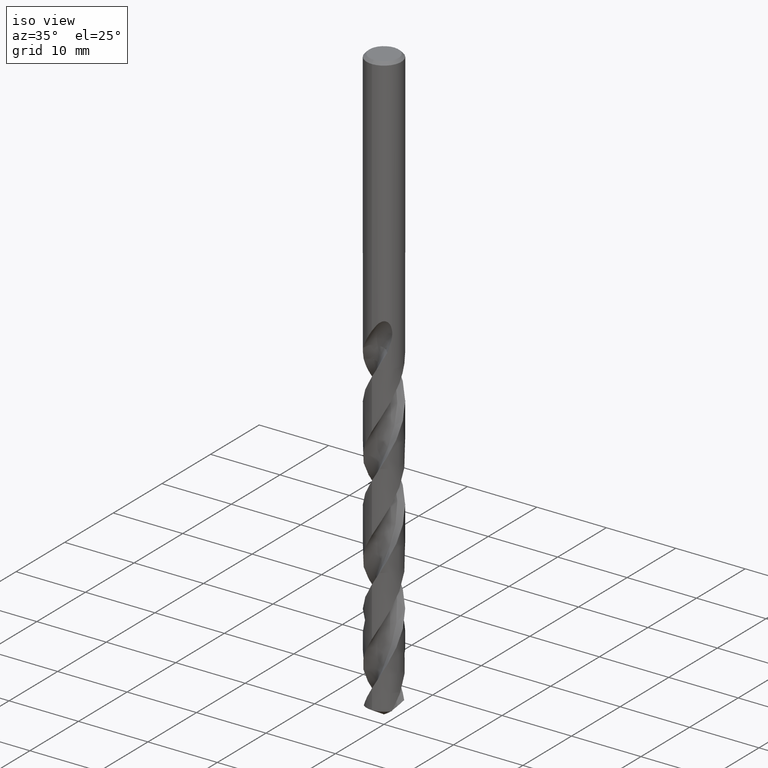
[diagram: clean part render]
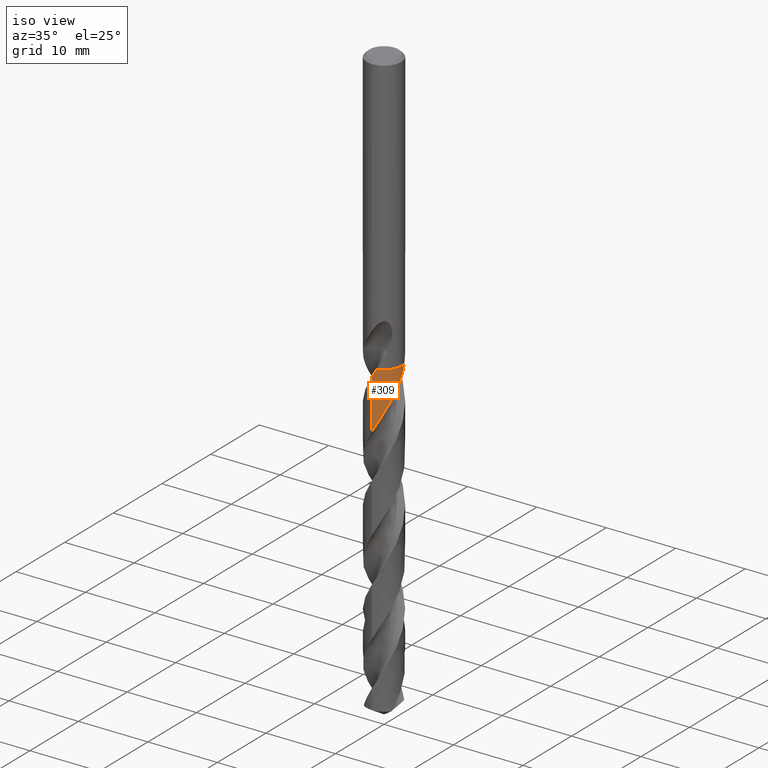
[diagram: same view with one face highlighted and labeled with its STEP entity id]
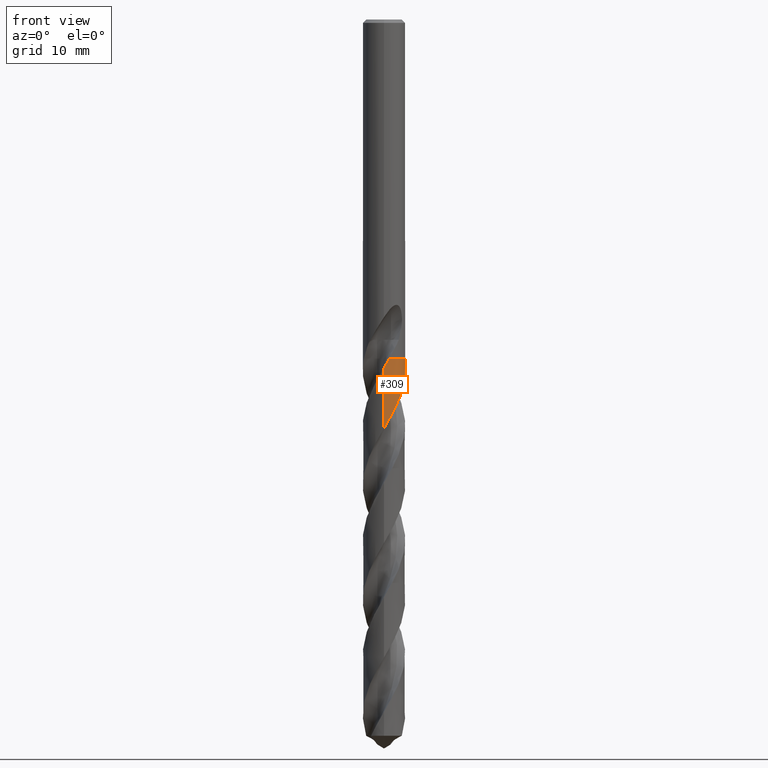
[diagram: same view with one face highlighted and labeled with its STEP entity id]
A machine part, iso view. The second image highlights one B-rep face of the part: STEP entity #309.
A second angle (front view) of the same face is appended — the face is thin or edge-on in the first view.
In plain terms, the highlighted conical surface has half-angle 0 deg.
Its self-contained STEP definition (entity closure, byte-faithful):
#309=ADVANCED_FACE('',(#850),#851,.T.);
#409=VERTEX_POINT('',#961);
#429=VERTEX_POINT('',#983);
#495=EDGE_CURVE('',#429,#645,#1057,.T.);
#511=EDGE_CURVE('',#521,#645,#1073,.T.);
#521=VERTEX_POINT('',#1084);
#531=VERTEX_POINT('',#1095);
#645=VERTEX_POINT('',#1218);
#685=EDGE_CURVE('',#531,#809,#1260,.T.);
#701=EDGE_CURVE('',#521,#531,#1280,.T.);
#707=EDGE_CURVE('',#409,#429,#1287,.T.);
#733=EDGE_CURVE('',#809,#409,#1315,.T.);
#809=VERTEX_POINT('',#1396);
#850=FACE_OUTER_BOUND('',#2003,.T.);
#851=CONICAL_SURFACE('',#2004,2.49995,2.2472996667905E-006);
#961=CARTESIAN_POINT('',(0.632796040746266,-2.41848489365054,-40.0));
#983=CARTESIAN_POINT('',(0.629984791666871,-2.41921872271421,-40.005));
#1057=B_SPLINE_CURVE_WITH_KNOTS('',3,(#5531,#5532,#5533,#5534,#5535,#5536,#5537,#5538,#5539,#5540,#5541,#5542,#5543,#5544,#5545,#5546,#5547,#5548,#5549,#5550,#5551,#5552,#5553,#5554,#5555,#5556,#5557,#5558,#5559,#5560,#5561,#5562,#5563,#5564,#5565,#5566,#5567,#5568,#5569,#5570,#5571,#5572,#5573,#5574,#5575,#5576,#5577,#5578,#5579,#5580,#5581,#5582,#5583,#5584,#5585,#5586,#5587,#5588,#5589,#5590,#5591,#5592,#5593,#5594,#5595,#5596,#5597,#5598,#5599,#5600,#5601,#5602,#5603,#5604,#5605,#5606,#5607,#5608,#5609,#5610,#5611,#5612,#5613,#5614,#5615,#5616,#5617,#5618,#5619,#5620,#5621,#5622,#5623,#5624,#5625,#5626,#5627,#5628,#5629,#5630,#5631,#5632,#5633,#5634,#5635,#5636,#5637,#5638,#5639,#5640,#5641,#5642,#5643,#5644,#5645,#5646,#5647,#5648,#5649,#5650,#5651,#5652,#5653,#5654,#5655,#5656,#5657,#5658,#5659,#5660,#5661,#5662,#5663,#5664,#5665,#5666,#5667,#5668,#5669,#5670,#5671,#5672,#5673,#5674,#5675,#5676,#5677,#5678,#5679,#5680,#5681,#5682),.UNSPECIFIED.,.F.,.F.,(4,2,2,2,2,2,2,2,2,2,2,2,2,2,2,2,2,2,2,2,2,2,2,2,2,2,2,2,2,2,2,2,2,2,2,2,2,2,2,2,2,2,2,2,2,2,2,2,2,2,2,2,2,2,2,2,2,2,2,2,2,2,2,2,2,2,2,2,2,2,2,2,2,2,2,4),(0.0,0.486468637205659,1.70143641228443,2.65078651556371,2.69801352807656,4.16182916539845,4.64297843482625,5.46628319013325,5.94827491671643,6.39877088951246,7.2452349083656,8.20441671320281,9.24810325309858,9.84779101742596,10.7331854300438,11.1672260344376,11.6253635205014,12.4724261974801,12.9064373972803,13.365326095412,14.2079548086289,15.167164260544,16.1997147164964,16.8178226143658,17.7068396053384,18.140601446097,18.594473016517,19.4452445024272,19.878983841379,20.3339119557433,21.1821044103471,22.1399289317482,23.1860164497523,23.7797694981045,24.6652458710148,25.6228613857516,26.6730879037276,27.2602448664424,28.1449336295283,28.578501826849,29.0356507875547,29.8793876935311,30.3129781186961,30.7736254975366,31.6147356714986,32.048322163168,32.511746710175,33.3521728259255,34.310511339114,35.3384254203687,35.96204701574,36.8504313694439,37.8066224498992,38.8631528107547,39.4383850291312,40.3219578972178,40.7552014930623,41.2125694869403,42.0580960960982,42.4913104596901,42.9496833130464,43.793179147003,44.2263766387619,44.6861272882223,45.5281025525777,46.9858631663966,47.5358344393069,48.4852455571852,49.2093118088113,50.2988937702121,50.8460679603494,51.120258945224,51.2572517241446,51.3256364851117,51.3597868174541,51.3939164880868),.UNSPECIFIED.);
#1073=LINE('',#5789,#5790);
#1084=CARTESIAN_POINT('',(7.49775779177427E-013,-2.49991849177696,-48.2284428891601));
#1095=CARTESIAN_POINT('',(2.35724694031575,0.832398306731279,-40.005));
#1218=CARTESIAN_POINT('',(-2.25444126634023E-013,-2.49990247498614,-41.1013155783713));
#1260=B_SPLINE_CURVE_WITH_KNOTS('',3,(#9402,#9403,#9404,#9405),.UNSPECIFIED.,.F.,.F.,(4,4),(0.0,0.00783485658020793),.UNSPECIFIED.);
#1280=B_SPLINE_CURVE_WITH_KNOTS('',3,(#9435,#9436,#9437,#9438,#9439,#9440,#9441,#9442,#9443,#9444,#9445,#9446,#9447,#9448,#9449,#9450,#9451,#9452,#9453,#9454,#9455,#9456,#9457,#9458,#9459,#9460,#9461,#9462,#9463,#9464,#9465,#9466,#9467,#9468,#9469,#9470,#9471,#9472,#9473,#9474,#9475,#9476,#9477,#9478,#9479,#9480,#9481,#9482,#9483,#9484,#9485,#9486,#9487,#9488,#9489,#9490,#9491,#9492,#9493,#9494,#9495,#9496,#9497,#9498,#9499,#9500,#9501,#9502,#9503,#9504,#9505,#9506,#9507,#9508,#9509,#9510,#9511,#9512,#9513,#9514,#9515,#9516,#9517,#9518,#9519,#9520,#9521,#9522,#9523,#9524,#9525,#9526,#9527,#9528,#9529,#9530,#9531,#9532,#9533,#9534,#9535,#9536,#9537,#9538,#9539,#9540,#9541,#9542,#9543,#9544,#9545,#9546,#9547,#9548,#9549,#9550,#9551,#9552,#9553,#9554,#9555,#9556,#9557,#9558,#9559,#9560,#9561,#9562,#9563,#9564,#9565,#9566,#9567,#9568,#9569,#9570,#9571,#9572,#9573,#9574,#9575,#9576),.UNSPECIFIED.,.F.,.F.,(4,2,2,2,2,2,2,2,2,2,2,2,2,2,2,2,2,2,2,2,2,2,2,2,2,2,2,2,2,2,2,2,2,2,2,2,2,2,2,2,2,2,2,2,2,2,2,2,2,2,2,2,2,2,2,2,2,2,2,2,2,2,2,2,2,2,2,2,2,2,4),(0.0,0.886278392990134,1.32204168608435,2.18261664326031,3.04564370395588,3.80067059461583,4.53740035056587,5.01882581777993,5.37595032622277,6.43013206591807,7.22866469830102,8.65957156160223,8.85817479758621,9.89358465054521,10.7988532869425,11.5386437890194,11.9762295956819,12.7367552003956,13.6036792088966,14.4616483482586,15.3279048185633,16.1880553603282,17.0538426357121,17.488963389255,17.5551518693274,19.187686928308,19.3502184185733,20.372372509029,20.8054814901363,21.1433662643557,22.192403467487,23.0530888341666,23.9052028819446,24.7678786674932,25.5839327053124,26.0034158488695,26.3495649935091,27.4014588778916,28.1913417822223,29.6473237969438,29.7168776992087,30.754414896589,31.2292816728727,31.5816018632148,32.6319060144131,33.4274958473806,34.8679289978624,35.0597702640648,36.1002934238635,36.9963758875166,37.8127290278321,38.2376268294924,38.5868849836734,39.6519802673248,40.5199963048351,41.3729273516226,42.2431728642578,43.0074654064831,43.4455895869971,44.1857307690151,45.053814424272,45.8608030823382,46.5758274387533,46.8907979830468,47.4750985454959,48.5074653239573,49.2845076563142,50.4535732717912,51.0374889365494,51.332678916991,51.6278332694661),.UNSPECIFIED.);
#1287=B_SPLINE_CURVE_WITH_KNOTS('',3,(#10366,#10367,#10368,#10369),.UNSPECIFIED.,.F.,.F.,(4,4),(0.0,0.00714217259551268),.UNSPECIFIED.);
#1315=CIRCLE('',#10572,2.4999);
#1396=CARTESIAN_POINT('',(2.35627205901055,0.835153874400518,-40.0));
#2003=EDGE_LOOP('',(#12821,#12822,#12823,#12824,#12825,#12826));
#2004=AXIS2_PLACEMENT_3D('',#12827,#12828,#12829);
#5531=CARTESIAN_POINT('',(0.63023927417457,-2.41915243802108,-40.0045474541089));
#5532=CARTESIAN_POINT('',(0.551399159961684,-2.43969224495614,-40.14475084188));
#5533=CARTESIAN_POINT('',(0.471584726215799,-2.45637022987312,-40.2847910390962));
#5534=CARTESIAN_POINT('',(0.190016485841626,-2.50096843403933,-40.7751877348511));
#5535=CARTESIAN_POINT('',(-0.0140317145013403,-2.50811246414122,-41.1247744082103));
#5536=CARTESIAN_POINT('',(-0.374744383561304,-2.4767538626434,-41.7488575215678));
#5537=CARTESIAN_POINT('',(-0.531400300454792,-2.44794390539751,-42.0217327359614));
#5538=CARTESIAN_POINT('',(-0.691971968673954,-2.40224131618718,-42.3089445319066));
#5539=CARTESIAN_POINT('',(-0.699569909542848,-2.40003971571571,-42.3225538072412));
#5540=CARTESIAN_POINT('',(-0.942356929850779,-2.32843815028442,-42.7581107461923));
#5541=CARTESIAN_POINT('',(-1.16611997522422,-2.22482201011015,-43.1787331290915));
#5542=CARTESIAN_POINT('',(-1.43856095360426,-2.04611368679078,-43.739511093452));
#5543=CARTESIAN_POINT('',(-1.50375152755506,-1.99869016477058,-43.8780944923187));
#5544=CARTESIAN_POINT('',(-1.67392845575327,-1.86185557076079,-44.2543260410339));
#5545=CARTESIAN_POINT('',(-1.77403720257583,-1.76673561200314,-44.4915809876875));
#5546=CARTESIAN_POINT('',(-1.91953298776288,-1.60357848848554,-44.8680212252548));
#5547=CARTESIAN_POINT('',(-1.97032148143572,-1.5407504398965,-45.0069024608171));
#5548=CARTESIAN_POINT('',(-2.06254482885601,-1.4146257269884,-45.2757809540807));
#5549=CARTESIAN_POINT('',(-2.10429706700117,-1.35173375434415,-45.4055592500577));
#5550=CARTESIAN_POINT('',(-2.21610031849606,-1.16556904881058,-45.7796630826873));
#5551=CARTESIAN_POINT('',(-2.27862168283373,-1.0380533219699,-46.0235915854911));
#5552=CARTESIAN_POINT('',(-2.3882249983064,-0.756154306176223,-46.5443837713302));
#5553=CARTESIAN_POINT('',(-2.43186032618212,-0.601184418193876,-46.8199811434991));
#5554=CARTESIAN_POINT('',(-2.49130335919881,-0.271156714690888,-47.3977765336848));
#5555=CARTESIAN_POINT('',(-2.50417537122244,-0.0963279952251409,-47.6982197391236));
#5556=CARTESIAN_POINT('',(-2.49553174160593,0.178917266253958,-48.1721965873275));
#5557=CARTESIAN_POINT('',(-2.48632602993001,0.279040151212175,-48.3448428689166));
#5558=CARTESIAN_POINT('',(-2.44868865264733,0.524890387792521,-48.7732847998357));
#5559=CARTESIAN_POINT('',(-2.41324705442217,0.669212239860789,-49.0284699400836));
#5560=CARTESIAN_POINT('',(-2.34166096491422,0.878360884920476,-49.4091020070278));
#5561=CARTESIAN_POINT('',(-2.31511672937744,0.946115214320303,-49.5342245070372));
#5562=CARTESIAN_POINT('',(-2.25454574701492,1.08283414355419,-49.7915653744762));
#5563=CARTESIAN_POINT('',(-2.22023799763403,1.1515391921493,-49.9235862701155));
#5564=CARTESIAN_POINT('',(-2.11368486334522,1.34241556341654,-50.3001896630618));
#5565=CARTESIAN_POINT('',(-2.03409508490684,1.46021278242989,-50.5443660733219));
#5566=CARTESIAN_POINT('',(-1.89923081579418,1.62721654961593,-50.913975206333));
#5567=CARTESIAN_POINT('',(-1.85108470851523,1.68178546562946,-51.0391040146947));
#5568=CARTESIAN_POINT('',(-1.74725634725903,1.78959192830133,-51.2966833503941));
#5569=CARTESIAN_POINT('',(-1.69139055465751,1.84248064689944,-51.4289346947159));
#5570=CARTESIAN_POINT('',(-1.52633334597709,1.98490838909519,-51.8045203367325));
#5571=CARTESIAN_POINT('',(-1.41182759521533,2.06792595915809,-52.0474538732452));
#5572=CARTESIAN_POINT('',(-1.15324841885172,2.22384755647403,-52.5673762881366));
#5573=CARTESIAN_POINT('',(-1.00794722539404,2.29336051448927,-52.8430931799613));
#5574=CARTESIAN_POINT('',(-0.694534008567055,2.40773496991129,-53.4179332209462));
#5575=CARTESIAN_POINT('',(-0.526270104493439,2.45003207139287,-53.7153265046415));
#5576=CARTESIAN_POINT('',(-0.252353394923137,2.48932009422073,-54.1916165525459));
#5577=CARTESIAN_POINT('',(-0.14900313310003,2.49763583314589,-54.3696286408948));
#5578=CARTESIAN_POINT('',(0.103470604501137,2.50222843629095,-54.8046218844061));
#5579=CARTESIAN_POINT('',(0.252379803112171,2.49162175910156,-55.0609574583934));
#5580=CARTESIAN_POINT('',(0.471251258865402,2.45619256746932,-55.4427203984455));
#5581=CARTESIAN_POINT('',(0.542495455274487,2.44144707642524,-55.5678167490976));
#5582=CARTESIAN_POINT('',(0.686791266888688,2.40495065894258,-55.823958924539));
#5583=CARTESIAN_POINT('',(0.759650841521,2.3829380048545,-55.9548121675991));
#5584=CARTESIAN_POINT('',(0.965813700553425,2.31024007728766,-56.3314201274665));
#5585=CARTESIAN_POINT('',(1.09598876324218,2.25140748419148,-56.5767675128888));
#5586=CARTESIAN_POINT('',(1.28391668799822,2.14628405551235,-56.9475291157809));
#5587=CARTESIAN_POINT('',(1.34580722556575,2.10802886760496,-57.072633582986));
#5588=CARTESIAN_POINT('',(1.4690368677035,2.02421489123339,-57.3291038049777));
#5589=CARTESIAN_POINT('',(1.53009621865221,1.97846248560547,-57.4602753746949));
#5590=CARTESIAN_POINT('',(1.69868831090351,1.83966361638247,-57.8364874522486));
#5591=CARTESIAN_POINT('',(1.80054707679133,1.74010219384417,-58.0811228555829));
#5592=CARTESIAN_POINT('',(1.99826259069744,1.51077574266519,-58.602474267959));
#5593=CARTESIAN_POINT('',(2.09112939215022,1.37936708436662,-58.8779193397861));
#5594=CARTESIAN_POINT('',(2.25769598068665,1.08777663886304,-59.456520077426));
#5595=CARTESIAN_POINT('',(2.3284347403731,0.926766388953405,-59.7579095377373));
#5596=CARTESIAN_POINT('',(2.41200489362428,0.66473801789684,-60.2312799774648));
#5597=CARTESIAN_POINT('',(2.43655757521842,0.568174206313031,-60.4023723798153));
#5598=CARTESIAN_POINT('',(2.48321675002629,0.324651842246697,-60.8295000848232));
#5599=CARTESIAN_POINT('',(2.49811557457052,0.176644714944267,-61.0849311994412));
#5600=CARTESIAN_POINT('',(2.50159928378752,-0.132403043713693,-61.6170939701187));
#5601=CARTESIAN_POINT('',(2.4879344233985,-0.292730391105685,-61.8925367302413));
#5602=CARTESIAN_POINT('',(2.42727551789917,-0.623757039597442,-62.4723892125293));
#5603=CARTESIAN_POINT('',(2.37733260797339,-0.793148887217868,-62.7750217174326));
#5604=CARTESIAN_POINT('',(2.27230088629503,-1.04695359946303,-63.247776199575));
#5605=CARTESIAN_POINT('',(2.22930531500784,-1.13562833224026,-63.417007050146));
#5606=CARTESIAN_POINT('',(2.10873164112855,-1.3509327084023,-63.8420867634208));
#5607=CARTESIAN_POINT('',(2.02486629927563,-1.4736706478305,-64.097341960624));
#5608=CARTESIAN_POINT('',(1.88439564230523,-1.64441975903183,-64.4780428096076));
#5609=CARTESIAN_POINT('',(1.83575837460925,-1.69854643880873,-64.6031633948089));
#5610=CARTESIAN_POINT('',(1.73111026088509,-1.80524798916653,-64.8603590646547));
#5611=CARTESIAN_POINT('',(1.6749327554697,-1.8574865426407,-64.992236673316));
#5612=CARTESIAN_POINT('',(1.50854581099421,-1.99852142399512,-65.3679994165466));
#5613=CARTESIAN_POINT('',(1.39303212566252,-2.0806922716036,-65.6114825030129));
#5614=CARTESIAN_POINT('',(1.20853558982676,-2.18964005637852,-65.9804086654066));
#5615=CARTESIAN_POINT('',(1.14431177966045,-2.22387904441494,-66.1055513003008));
#5616=CARTESIAN_POINT('',(1.00893764735457,-2.2886276503876,-66.3637948026258));
#5617=CARTESIAN_POINT('',(0.937723659213122,-2.31871492913906,-66.4966941186478));
#5618=CARTESIAN_POINT('',(0.732925181535382,-2.3942673735221,-66.8727540547436));
#5619=CARTESIAN_POINT('',(0.596670845971635,-2.43180992015328,-67.115512391682));
#5620=CARTESIAN_POINT('',(0.386444383968251,-2.47098372043089,-67.4837244319647));
#5621=CARTESIAN_POINT('',(0.314374536433909,-2.48118401774517,-67.6088816413948));
#5622=CARTESIAN_POINT('',(0.164536647146554,-2.49575438771433,-67.867957638562));
#5623=CARTESIAN_POINT('',(0.0868500316138516,-2.49966241983384,-68.001671869364));
#5624=CARTESIAN_POINT('',(-0.131816503987645,-2.50046184526096,-68.3783816450605));
#5625=CARTESIAN_POINT('',(-0.272589028748422,-2.48905608638307,-68.6209725644065));
#5626=CARTESIAN_POINT('',(-0.57026964785563,-2.43935935093655,-69.1406306629626));
#5627=CARTESIAN_POINT('',(-0.725899988031532,-2.39765125164813,-69.4164254960133));
#5628=CARTESIAN_POINT('',(-1.03787326520919,-2.28087149788918,-69.9903607028576));
#5629=CARTESIAN_POINT('',(-1.19271072403101,-2.20387122854121,-70.2867803717403));
#5630=CARTESIAN_POINT('',(-1.42684031083477,-2.05546313072055,-70.7638938907659));
#5631=CARTESIAN_POINT('',(-1.51161039033216,-1.9939472851141,-70.9437028853568));
#5632=CARTESIAN_POINT('',(-1.70715294493416,-1.83240030196252,-71.3806259792815));
#5633=CARTESIAN_POINT('',(-1.81335518993627,-1.72737554180608,-71.6370839899216));
#5634=CARTESIAN_POINT('',(-2.01314735053127,-1.49092241525074,-72.1700765300712));
#5635=CARTESIAN_POINT('',(-2.10464387287574,-1.35869947743482,-72.4453220174977));
#5636=CARTESIAN_POINT('',(-2.26922102580631,-1.06391491437253,-73.0270267239073));
#5637=CARTESIAN_POINT('',(-2.33895230903406,-0.900354712069408,-73.3316892842329));
#5638=CARTESIAN_POINT('',(-2.41902643619649,-0.638370747796113,-73.8031777191218));
#5639=CARTESIAN_POINT('',(-2.44186927725548,-0.544491929965314,-73.9691072298079));
#5640=CARTESIAN_POINT('',(-2.48588459611924,-0.303714740341474,-74.3907427847977));
#5641=CARTESIAN_POINT('',(-2.49952457358333,-0.155762883871216,-74.6458718522745));
#5642=CARTESIAN_POINT('',(-2.50018441623188,0.0652672693479605,-75.0264476510596));
#5643=CARTESIAN_POINT('',(-2.49722844019774,0.137976821246924,-75.1515702581429));
#5644=CARTESIAN_POINT('',(-2.48463869407466,0.286996088671524,-75.4089320396397));
#5645=CARTESIAN_POINT('',(-2.47465345109559,0.363152098543516,-75.5409736620545));
#5646=CARTESIAN_POINT('',(-2.436289675047,0.578381576348571,-75.9176038820578));
#5647=CARTESIAN_POINT('',(-2.39954131339841,0.715719972064627,-76.1617864956334));
#5648=CARTESIAN_POINT('',(-2.3266220082302,0.917621620268797,-76.5314016841996));
#5649=CARTESIAN_POINT('',(-2.29894059603712,0.984924933423243,-76.6565306859548));
#5650=CARTESIAN_POINT('',(-2.2359968759933,1.12078476459019,-76.9142046206113));
#5651=CARTESIAN_POINT('',(-2.20044255183174,1.18906940543646,-77.046550580388));
#5652=CARTESIAN_POINT('',(-2.09071558691301,1.37799360628996,-77.4229281035671));
#5653=CARTESIAN_POINT('',(-2.00933577417888,1.49417150329276,-77.6665550453965));
#5654=CARTESIAN_POINT('',(-1.87190807286213,1.65866734319387,-78.0356219766295));
#5655=CARTESIAN_POINT('',(-1.82285462261161,1.71243213838426,-78.1607609644946));
#5656=CARTESIAN_POINT('',(-1.7170292684455,1.81870973112712,-78.4188584427427));
#5657=CARTESIAN_POINT('',(-1.66006113201648,1.87085129123842,-78.5516155935741));
#5658=CARTESIAN_POINT('',(-1.49224455036476,2.01074961720379,-78.9279963702924));
#5659=CARTESIAN_POINT('',(-1.3761941034369,2.09189329701951,-79.1712161119976));
#5660=CARTESIAN_POINT('',(-1.04212435262395,2.28557200272435,-79.8361071790207));
#5661=CARTESIAN_POINT('',(-0.813504659738974,2.37655918058732,-80.2551886278359));
#5662=CARTESIAN_POINT('',(-0.485553651125645,2.45412268775418,-80.8357253709578));
#5663=CARTESIAN_POINT('',(-0.39458071816252,2.47038462275969,-80.9945970666482));
#5664=CARTESIAN_POINT('',(-0.144589586789465,2.50089781601546,-81.4280401918773));
#5665=CARTESIAN_POINT('',(0.0151167217388537,2.50501944193184,-81.7018145922558));
#5666=CARTESIAN_POINT('',(0.295257549123687,2.48546980852061,-82.185755922971));
#5667=CARTESIAN_POINT('',(0.415737332332722,2.46818269534114,-82.3948765796481));
#5668=CARTESIAN_POINT('',(0.713283122092211,2.40305927002728,-82.9192131723193));
#5669=CARTESIAN_POINT('',(0.887171560613357,2.34443348809209,-83.2332529057071));
#5670=CARTESIAN_POINT('',(1.1363714467765,2.22869656355052,-83.7065195111907));
#5671=CARTESIAN_POINT('',(1.21751147352496,2.18543067255621,-83.8645969304776));
#5672=CARTESIAN_POINT('',(1.33549597280791,2.1138986554944,-84.1020401817815));
#5673=CARTESIAN_POINT('',(1.37421730767917,2.08893401258426,-84.1812795370729));
#5674=CARTESIAN_POINT('',(1.43122126868187,2.04991053038287,-84.3001400512296));
#5675=CARTESIAN_POINT('',(1.45003212595502,2.0366479131867,-84.3397375623819));
#5676=CARTESIAN_POINT('',(1.47795374374531,2.01637883516352,-84.3991069576202));
#5677=CARTESIAN_POINT('',(1.48720388364764,2.00956604472597,-84.418875046139));
#5678=CARTESIAN_POINT('',(1.50100203562564,1.99925617302772,-84.4485160021217));
#5679=CARTESIAN_POINT('',(1.50558571055292,1.99580663704535,-84.4583882383302));
#5680=CARTESIAN_POINT('',(1.51472626076906,1.98887832740437,-84.4781269968799));
#5681=CARTESIAN_POINT('',(1.51928135173155,1.98540093589974,-84.487989578672));
#5682=CARTESIAN_POINT('',(1.52382250889803,1.98190942310079,-84.4978484524311));
#5789=CARTESIAN_POINT('',(3.06389759560313E-016,-2.49995,-62.2489242262156));
#5790=VECTOR('',#13099,1.0);
#9402=CARTESIAN_POINT('',(2.3575900776459,0.831425950873049,-40.0067639019026));
#9403=CARTESIAN_POINT('',(2.35715173091003,0.832668910931339,-40.0045092499333));
#9404=CARTESIAN_POINT('',(2.35671239127266,0.833911552510874,-40.0022546168211));
#9405=CARTESIAN_POINT('',(2.35627205901055,0.835153874400524,-40.0));
#9435=CARTESIAN_POINT('',(-2.10422651157214,1.34990028816833,-84.4978484524311));
#9436=CARTESIAN_POINT('',(-2.18391051900309,1.22568767756884,-84.2419221247438));
#9437=CARTESIAN_POINT('',(-2.252677527884,1.09430014159775,-83.9875843090841));
#9438=CARTESIAN_POINT('',(-2.33748630792873,0.889651265414245,-83.6067592875566));
#9439=CARTESIAN_POINT('',(-2.36246314517356,0.821024577012156,-83.4814096967746));
#9440=CARTESIAN_POINT('',(-2.42771079060993,0.613980715266563,-83.1079151522613));
#9441=CARTESIAN_POINT('',(-2.45903468055017,0.473166540072573,-82.8590383284668));
#9442=CARTESIAN_POINT('',(-2.49716404384125,0.187143655885062,-82.3624378988971));
#9443=CARTESIAN_POINT('',(-2.50380559078085,0.0425442743033106,-82.115147783928));
#9444=CARTESIAN_POINT('',(-2.49276955126664,-0.228141303839346,-81.6490463295475));
#9445=CARTESIAN_POINT('',(-2.47806147168876,-0.353680977577102,-81.430661439266));
#9446=CARTESIAN_POINT('',(-2.43045502999355,-0.598331409784647,-81.0010353837789));
#9447=CARTESIAN_POINT('',(-2.39802778223436,-0.717386053515937,-80.7897585073854));
#9448=CARTESIAN_POINT('',(-2.32999765851553,-0.90970608583893,-80.4392541366082));
#9449=CARTESIAN_POINT('',(-2.29948722869155,-0.984264079787256,-80.3009224504768));
#9450=CARTESIAN_POINT('',(-2.24026878574673,-1.11117196390121,-80.0594204793932));
#9451=CARTESIAN_POINT('',(-2.213167651963,-1.1642073017191,-79.9563545263131));
#9452=CARTESIAN_POINT('',(-2.09877028555366,-1.36965680194334,-79.5502761666427));
#9453=CARTESIAN_POINT('',(-1.99727489886881,-1.51389349541006,-79.2494764762246));
#9454=CARTESIAN_POINT('',(-1.79335104256779,-1.74689361462812,-78.7171507757342));
#9455=CARTESIAN_POINT('',(-1.69768097558766,-1.83997033577096,-78.4869120124649));
#9456=CARTESIAN_POINT('',(-1.41186530339407,-2.07685549619693,-77.8466083533054));
#9457=CARTESIAN_POINT('',(-1.20782797116339,-2.20173657338893,-77.4417842905076));
#9458=CARTESIAN_POINT('',(-0.959082376887223,-2.30893184285237,-76.9737755171583));
#9459=CARTESIAN_POINT('',(-0.928542820691034,-2.32138223173487,-76.916694578149));
#9460=CARTESIAN_POINT('',(-0.736873139803268,-2.3951244177099,-76.5619560110457));
#9461=CARTESIAN_POINT('',(-0.569840245780003,-2.44030433285652,-76.2666964864251));
#9462=CARTESIAN_POINT('',(-0.249922689823462,-2.492045872693,-75.7096782187253));
#9463=CARTESIAN_POINT('',(-0.0990137460338281,-2.50256153270188,-75.4488938136031));
#9464=CARTESIAN_POINT('',(0.174835629405995,-2.49689772496044,-74.9767630185488));
#9465=CARTESIAN_POINT('',(0.29776239291996,-2.48525059106793,-74.7653404276965));
#9466=CARTESIAN_POINT('',(0.491462725069135,-2.45228140499202,-74.4277435134555));
#9467=CARTESIAN_POINT('',(0.562799895310504,-2.43689354024929,-74.3024107813202));
#9468=CARTESIAN_POINT('',(0.755780887041995,-2.3863595084372,-73.9586019145727));
#9469=CARTESIAN_POINT('',(0.875745688232134,-2.34500405419005,-73.7394105399627));
#9470=CARTESIAN_POINT('',(1.12493256471239,-2.23725603310617,-73.2722258518126));
#9471=CARTESIAN_POINT('',(1.25241470672275,-2.16846259023151,-73.0247484575468));
#9472=CARTESIAN_POINT('',(1.49278571590759,-2.01045474270347,-72.5296148414455));
#9473=CARTESIAN_POINT('',(1.60528257314614,-1.92182325254021,-72.282289245735));
#9474=CARTESIAN_POINT('',(1.81508209629788,-1.72516828542529,-71.7873411432425));
#9475=CARTESIAN_POINT('',(1.91171972181452,-1.61742228362989,-71.5400673035538));
#9476=CARTESIAN_POINT('',(2.08470063315061,-1.38724605937607,-71.0445765381367));
#9477=CARTESIAN_POINT('',(2.16077422922401,-1.26548986400792,-70.7966549280616));
#9478=CARTESIAN_POINT('',(2.29173199060145,-1.00927656435482,-70.3013010026724));
#9479=CARTESIAN_POINT('',(2.34617762434174,-0.875291752446674,-70.0542064758746));
#9480=CARTESIAN_POINT('',(2.41016323003706,-0.667991263709907,-69.680940369656));
#9481=CARTESIAN_POINT('',(2.42849153472781,-0.597899097825472,-69.5561936001088));
#9482=CARTESIAN_POINT('',(2.44605098634188,-0.516513216909179,-69.4121523121453));
#9483=CARTESIAN_POINT('',(2.44830798842161,-0.505708514135238,-69.3930648087535));
#9484=CARTESIAN_POINT('',(2.50460964636634,-0.226893718809418,-68.9013864288246));
#9485=CARTESIAN_POINT('',(2.51438527567601,0.047921911159083,-68.4381158017325));
#9486=CARTESIAN_POINT('',(2.47607901971076,0.345811969681123,-67.9189332273757));
#9487=CARTESIAN_POINT('',(2.47217306975323,0.37271569618469,-67.8718900871299));
#9488=CARTESIAN_POINT('',(2.44040130446507,0.568908350618748,-67.5285481481257));
#9489=CARTESIAN_POINT('',(2.39560537287983,0.735183284931472,-67.2346644624544));
#9490=CARTESIAN_POINT('',(2.30780985599951,0.963914820444815,-66.8135713896469));
#9491=CARTESIAN_POINT('',(2.27875321579664,1.03071299229601,-66.6883740265351));
#9492=CARTESIAN_POINT('',(2.22201131584787,1.14703094502361,-66.46505740074));
#9493=CARTESIAN_POINT('',(2.19545882738938,1.19706677899594,-66.3670069047228));
#9494=CARTESIAN_POINT('',(2.07949234960505,1.39873703286315,-65.9653886515186));
#9495=CARTESIAN_POINT('',(1.97581829464792,1.54177169184462,-65.6641537798309));
#9496=CARTESIAN_POINT('',(1.76088663222546,1.78045360391262,-65.1118672958536));
#9497=CARTESIAN_POINT('',(1.65500198818701,1.87925778682486,-64.8619526583561));
#9498=CARTESIAN_POINT('',(1.42869275847984,2.05646769909544,-64.3666464041242));
#9499=CARTESIAN_POINT('',(1.30866920742302,2.13486980978589,-64.1216074188359));
#9500=CARTESIAN_POINT('',(1.0547258686855,2.27119872213977,-63.6260869391802));
#9501=CARTESIAN_POINT('',(0.921430692237337,2.32844220539274,-63.3758342377953));
#9502=CARTESIAN_POINT('',(0.654206956299581,2.41670972524801,-62.8907823211723));
#9503=CARTESIAN_POINT('',(0.52088578397732,2.44892262628485,-62.65620383026));
#9504=CARTESIAN_POINT('',(0.315831079742434,2.48092042197681,-62.2995111565081));
#9505=CARTESIAN_POINT('',(0.245880112938418,2.4888209245857,-62.1785222964509));
#9506=CARTESIAN_POINT('',(0.117948093153121,2.49783845896696,-61.9572809658584));
#9507=CARTESIAN_POINT('',(0.0600815671038602,2.4998976901375,-61.8570602236937));
#9508=CARTESIAN_POINT('',(-0.173776113812252,2.50010066044114,-61.4532904686481));
#9509=CARTESIAN_POINT('',(-0.349474907860109,2.48168103680088,-61.152031278009));
#9510=CARTESIAN_POINT('',(-0.651618393524941,2.41716400498301,-60.6208256894603));
#9511=CARTESIAN_POINT('',(-0.778600987824094,2.37927437374619,-60.3921813584039));
#9512=CARTESIAN_POINT('',(-1.12877698561757,2.24384267785878,-59.7446599470541));
#9513=CARTESIAN_POINT('',(-1.34153144629008,2.12343527831409,-59.3312303383691));
#9514=CARTESIAN_POINT('',(-1.54248470949246,1.96738094001302,-58.8912837695788));
#9515=CARTESIAN_POINT('',(-1.551582527488,1.96021382124798,-58.8712411449911));
#9516=CARTESIAN_POINT('',(-1.6957979180537,1.8449687680032,-58.5520031146652));
#9517=CARTESIAN_POINT('',(-1.81965108777344,1.7230128733611,-58.2552283312348));
#9518=CARTESIAN_POINT('',(-1.98064368467309,1.52744122058987,-57.8199546462261));
#9519=CARTESIAN_POINT('',(-2.02816178171267,1.46374473255905,-57.6834652416797));
#9520=CARTESIAN_POINT('',(-2.10541842145231,1.34921155462521,-57.4451706168055));
#9521=CARTESIAN_POINT('',(-2.13653700391276,1.29936701131343,-57.3434700787059));
#9522=CARTESIAN_POINT('',(-2.25331725093003,1.09677385309144,-56.939690669476));
#9523=CARTESIAN_POINT('',(-2.32470074822334,0.936106566353564,-56.6398385125981));
#9524=CARTESIAN_POINT('',(-2.41964247373074,0.642423543181786,-56.1091920489651));
#9525=CARTESIAN_POINT('',(-2.45032986937473,0.512963390961479,-55.8796716213362));
#9526=CARTESIAN_POINT('',(-2.50724867377128,0.144802901773142,-55.2371259211359));
#9527=CARTESIAN_POINT('',(-2.50954098783979,-0.096134112553687,-54.8294640112822));
#9528=CARTESIAN_POINT('',(-2.47332944751341,-0.3651307185008,-54.3603706768571));
#9529=CARTESIAN_POINT('',(-2.46847265550641,-0.396643003911556,-54.3051920468805));
#9530=CARTESIAN_POINT('',(-2.43329798807289,-0.598989604622125,-53.9504521815196));
#9531=CARTESIAN_POINT('',(-2.3858639443032,-0.76653515410372,-53.6533672070077));
#9532=CARTESIAN_POINT('',(-2.26564996926153,-1.06720495059083,-53.0967507915148));
#9533=CARTESIAN_POINT('',(-2.19770903544469,-1.20085090325525,-52.8382325607284));
#9534=CARTESIAN_POINT('',(-2.04609323904771,-1.44279903017675,-52.3460840469817));
#9535=CARTESIAN_POINT('',(-1.96444971163997,-1.55215205021446,-52.1126622105604));
#9536=CARTESIAN_POINT('',(-1.82720871198177,-1.70762405163112,-51.7562376897881));
#9537=CARTESIAN_POINT('',(-1.77804836156962,-1.7587457128104,-51.6343457172707));
#9538=CARTESIAN_POINT('',(-1.68478186414889,-1.84784320069532,-51.4118392058517));
#9539=CARTESIAN_POINT('',(-1.64138731368674,-1.88649161391621,-51.311257949122));
#9540=CARTESIAN_POINT('',(-1.46034078159854,-2.0367676634919,-50.9049903853897));
#9541=CARTESIAN_POINT('',(-1.31218980078453,-2.13526360646051,-50.6016382238099));
#9542=CARTESIAN_POINT('',(-1.02614449095127,-2.28420896519399,-50.0471165251048));
#9543=CARTESIAN_POINT('',(-0.892319578837333,-2.33971162581538,-49.7971246640483));
#9544=CARTESIAN_POINT('',(-0.619229504675892,-2.426172861405,-49.3034960141672));
#9545=CARTESIAN_POINT('',(-0.480377350527092,-2.45745015074196,-49.0601916287705));
#9546=CARTESIAN_POINT('',(-0.19574494777066,-2.49646376823227,-48.5662941631871));
#9547=CARTESIAN_POINT('',(-0.0507612555953547,-2.50358743100644,-48.3159156346036));
#9548=CARTESIAN_POINT('',(0.220798731719972,-2.49338773625382,-47.8474820253833));
#9549=CARTESIAN_POINT('',(0.347362739314253,-2.47894014967815,-47.6294287429446));
#9550=CARTESIAN_POINT('',(0.544113278760813,-2.44107607338865,-47.2851506969793));
#9551=CARTESIAN_POINT('',(0.615077172712349,-2.42416260863258,-47.1598426737277));
#9552=CARTESIAN_POINT('',(0.803435911071962,-2.37048599242584,-46.8222011474744));
#9553=CARTESIAN_POINT('',(0.91922723259938,-2.32804646363336,-46.60917458447));
#9554=CARTESIAN_POINT('',(1.16328395782359,-2.21748851085846,-46.1480914932658));
#9555=CARTESIAN_POINT('',(1.28956633037012,-2.14650592546719,-45.9005926596799));
#9556=CARTESIAN_POINT('',(1.52001342933652,-1.98926722546053,-45.4203642180369));
#9557=CARTESIAN_POINT('',(1.62462955589698,-1.90478056801322,-45.1880330933296));
#9558=CARTESIAN_POINT('',(1.8083255126705,-1.73022663162695,-44.7516911190497));
#9559=CARTESIAN_POINT('',(1.88871062994866,-1.64211260183547,-44.5475105054248));
#9560=CARTESIAN_POINT('',(1.99507890549384,-1.50730401952672,-44.2523938121174));
#9561=CARTESIAN_POINT('',(2.02627025970363,-1.4651017912397,-44.1621912321141));
#9562=CARTESIAN_POINT('',(2.11139797939806,-1.34201272470157,-43.9043746588744));
#9563=CARTESIAN_POINT('',(2.16191718675857,-1.25900279040969,-43.7362799827545));
#9564=CARTESIAN_POINT('',(2.28802630669095,-1.02172228889719,-43.2728941182276));
#9565=CARTESIAN_POINT('',(2.35279604961156,-0.862216639087429,-42.9792680840275));
#9566=CARTESIAN_POINT('',(2.43679532262167,-0.57296392246958,-42.461060135931));
#9567=CARTESIAN_POINT('',(2.46313774933554,-0.446286680206723,-42.237633515341));
#9568=CARTESIAN_POINT('',(2.50431665116137,-0.125319826838911,-41.6803324080407));
#9569=CARTESIAN_POINT('',(2.50645683840412,0.0695724334138242,-41.3490658047814));
#9570=CARTESIAN_POINT('',(2.47589973823172,0.358919081124069,-40.8469450882297));
#9571=CARTESIAN_POINT('',(2.46015254207874,0.454489229472373,-40.6789386816867));
#9572=CARTESIAN_POINT('',(2.42808527024133,0.596917000525894,-40.4270847749132));
#9573=CARTESIAN_POINT('',(2.41589545797875,0.64449386077791,-40.3425873312556));
#9574=CARTESIAN_POINT('',(2.38867528713225,0.739020358974018,-40.1736526651882));
#9575=CARTESIAN_POINT('',(2.37365860090812,0.785925478498543,-40.0893101388365));
#9576=CARTESIAN_POINT('',(2.35723366210569,0.832435900024549,-40.0049317940782));
#10366=CARTESIAN_POINT('',(0.632796040746273,-2.41848489365054,-40.0));
#10367=CARTESIAN_POINT('',(0.631638879813455,-2.41878766933587,-40.0020584346405));
#10368=CARTESIAN_POINT('',(0.630481485245223,-2.41908961880215,-40.0041168590598));
#10369=CARTESIAN_POINT('',(0.629323857897345,-2.41939074175026,-40.0061752738682));
#10572=AXIS2_PLACEMENT_3D('',#13298,#13299,#13300);
#12821=ORIENTED_EDGE('',*,*,#511,.F.);
#12822=ORIENTED_EDGE('',*,*,#701,.T.);
#12823=ORIENTED_EDGE('',*,*,#685,.T.);
#12824=ORIENTED_EDGE('',*,*,#733,.T.);
#12825=ORIENTED_EDGE('',*,*,#707,.T.);
#12826=ORIENTED_EDGE('',*,*,#495,.T.);
#12827=CARTESIAN_POINT('',(0.0,0.0,-62.2489242262156));
#12828=DIRECTION('',(0.0,-0.0,-1.0));
#12829=DIRECTION('',(0.0,1.0,0.0));
#13099=DIRECTION('',(-2.75205745089224E-022,2.24729966678861E-006,0.999999999997475));
#13298=CARTESIAN_POINT('',(0.0,0.0,-40.0));
#13299=DIRECTION('',(0.0,0.0,-1.0));
#13300=DIRECTION('',(0.0,1.0,0.0));